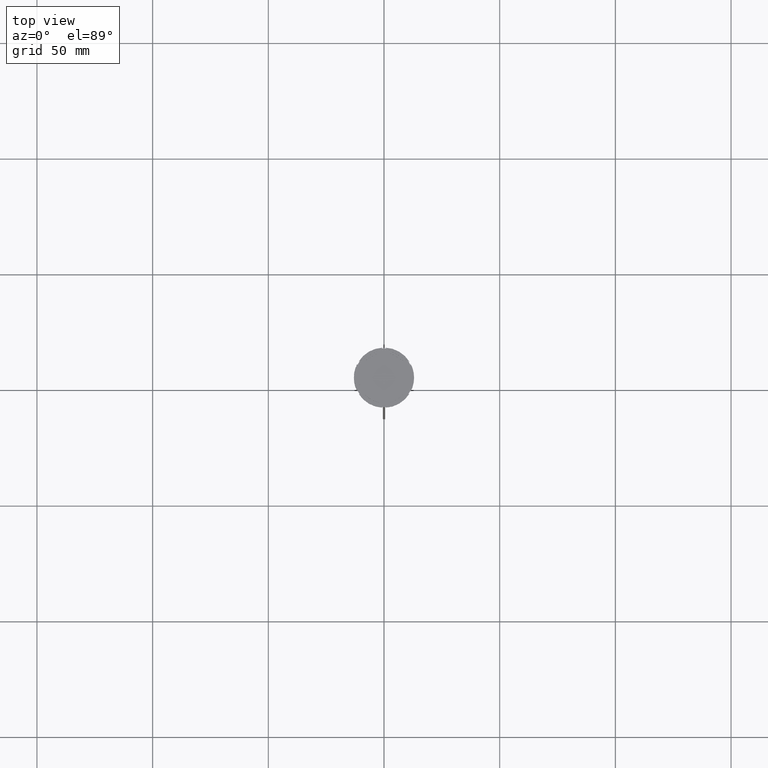
[diagram: clean part render]
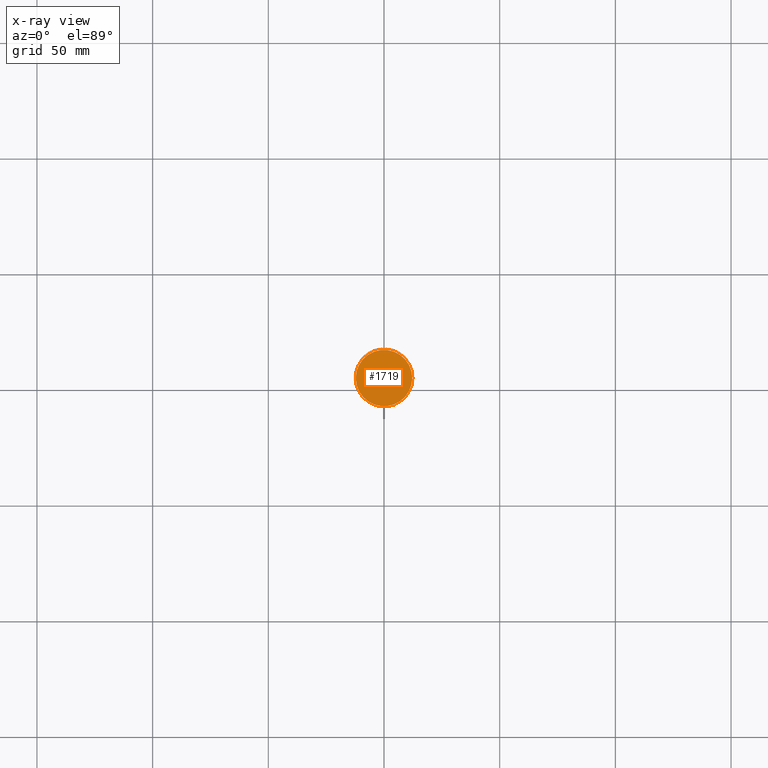
[diagram: x-ray — body ghosted, one internal face saturated and labeled with its STEP entity id]
A machine part, top view, then the same camera in x-ray: the body is ghosted and one INTERNAL B-rep face — a face not visible from any outside direction — is saturated and labeled: STEP entity #1719.
In plain terms, the highlighted planar face has unit normal (0, 0, -1).
Its self-contained STEP definition (entity closure, byte-faithful):
#43 = ORIENTED_EDGE ( 'NONE', *, *, #2253, .T. ) ;
#125 = DIRECTION ( 'NONE',  ( -0.000000000000000000, -0.000000000000000000, 1.000000000000000000 ) ) ;
#137 = CARTESIAN_POINT ( 'NONE',  ( -12.20000000000000639, 0.000000000000000000, -12.00000000000000000 ) ) ;
#160 = EDGE_LOOP ( 'NONE', ( #1038, #43 ) ) ;
#193 = DIRECTION ( 'NONE',  ( -1.000000000000000000, 0.000000000000000000, -0.000000000000000000 ) ) ;
#259 = PLANE ( 'NONE',  #1882 ) ;
#358 = CARTESIAN_POINT ( 'NONE',  ( 0.000000000000000000, 0.000000000000000000, -12.00000000000000000 ) ) ;
#425 = CARTESIAN_POINT ( 'NONE',  ( 0.000000000000000000, 0.000000000000000000, -12.00000000000000000 ) ) ;
#483 = FACE_OUTER_BOUND ( 'NONE', #160, .T. ) ;
#519 = CARTESIAN_POINT ( 'NONE',  ( 12.20000000000000639, 1.512438796946981880E-15, -12.00000000000000000 ) ) ;
#695 = DIRECTION ( 'NONE',  ( -1.000000000000000000, 0.000000000000000000, 0.000000000000000000 ) ) ;
#698 = VERTEX_POINT ( 'NONE', #137 ) ;
#1038 = ORIENTED_EDGE ( 'NONE', *, *, #2248, .T. ) ;
#1040 = DIRECTION ( 'NONE',  ( -1.000000000000000000, 0.000000000000000000, 0.000000000000000000 ) ) ;
#1294 = CIRCLE ( 'NONE', #2164, 12.20000000000000639 ) ;
#1316 = DIRECTION ( 'NONE',  ( 0.000000000000000000, 0.000000000000000000, -1.000000000000000000 ) ) ;
#1413 = AXIS2_PLACEMENT_3D ( 'NONE', #358, #125, #1040 ) ;
#1572 = DIRECTION ( 'NONE',  ( -0.000000000000000000, -0.000000000000000000, 1.000000000000000000 ) ) ;
#1719 = ADVANCED_FACE ( 'NONE', ( #483 ), #259, .F. ) ;
#1882 = AXIS2_PLACEMENT_3D ( 'NONE', #2487, #1316, #193 ) ;
#2164 = AXIS2_PLACEMENT_3D ( 'NONE', #425, #1572, #695 ) ;
#2248 = EDGE_CURVE ( 'NONE', #698, #2757, #2673, .T. ) ;
#2253 = EDGE_CURVE ( 'NONE', #2757, #698, #1294, .T. ) ;
#2487 = CARTESIAN_POINT ( 'NONE',  ( 0.000000000000000000, 0.000000000000000000, -12.00000000000000000 ) ) ;
#2673 = CIRCLE ( 'NONE', #1413, 12.20000000000000639 ) ;
#2757 = VERTEX_POINT ( 'NONE', #519 ) ;